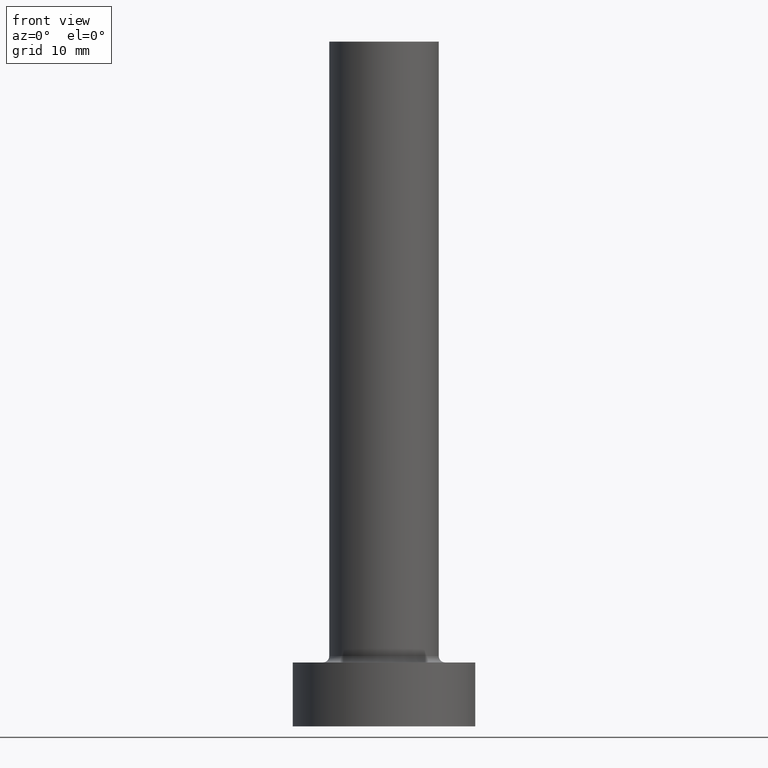
[diagram: clean part render]
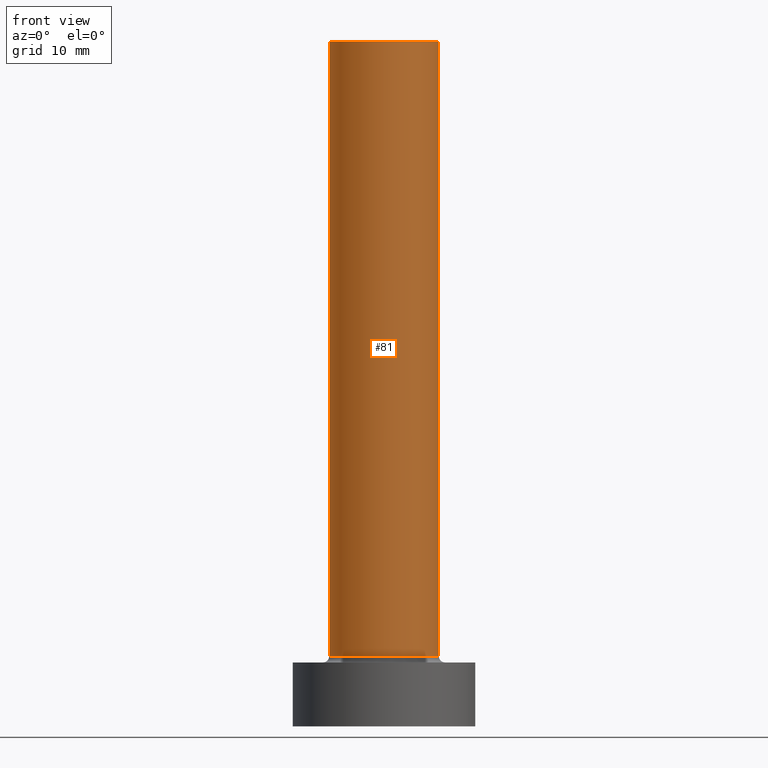
[diagram: same view with one face highlighted and labeled with its STEP entity id]
A machine part, front view. The second image highlights one B-rep face of the part: STEP entity #81.
In plain terms, the highlighted cylindrical surface (partial cylindrical patch) has radius 6 mm, axis along (-0, -0, -1).
Its self-contained STEP definition (entity closure, byte-faithful):
#1 = DIRECTION ( 'NONE',  ( -0.000000000000000000, -0.000000000000000000, -1.000000000000000000 ) ) ;
#21 = VERTEX_POINT ( 'NONE', #172 ) ;
#29 = CIRCLE ( 'NONE', #436, 6.000000000000000888 ) ;
#43 = CARTESIAN_POINT ( 'NONE',  ( -6.000000000000000888, 0.000000000000000000, 75.00000000000001421 ) ) ;
#44 = CARTESIAN_POINT ( 'NONE',  ( 6.000000000000000888, 7.347880794884120722E-16, 75.00000000000001421 ) ) ;
#53 = ORIENTED_EDGE ( 'NONE', *, *, #433, .T. ) ;
#57 = AXIS2_PLACEMENT_3D ( 'NONE', #329, #1, #288 ) ;
#60 = VECTOR ( 'NONE', #441, 1000.000000000000000 ) ;
#69 = VECTOR ( 'NONE', #323, 1000.000000000000000 ) ;
#76 = DIRECTION ( 'NONE',  ( 0.000000000000000000, 0.000000000000000000, 1.000000000000000000 ) ) ;
#81 = ADVANCED_FACE ( 'NONE', ( #192 ), #294, .T. ) ;
#82 = LINE ( 'NONE', #43, #69 ) ;
#94 = ORIENTED_EDGE ( 'NONE', *, *, #341, .T. ) ;
#97 = DIRECTION ( 'NONE',  ( 0.000000000000000000, 0.000000000000000000, 1.000000000000000000 ) ) ;
#99 = VERTEX_POINT ( 'NONE', #324 ) ;
#102 = DIRECTION ( 'NONE',  ( 1.000000000000000000, 0.000000000000000000, 0.000000000000000000 ) ) ;
#132 = EDGE_CURVE ( 'NONE', #21, #305, #29, .T. ) ;
#145 = EDGE_CURVE ( 'NONE', #305, #444, #149, .T. ) ;
#149 = LINE ( 'NONE', #44, #60 ) ;
#172 = CARTESIAN_POINT ( 'NONE',  ( -6.000000000000000888, 0.000000000000000000, 75.00000000000001421 ) ) ;
#186 = AXIS2_PLACEMENT_3D ( 'NONE', #431, #97, #102 ) ;
#192 = FACE_OUTER_BOUND ( 'NONE', #271, .T. ) ;
#210 = CIRCLE ( 'NONE', #186, 6.000000000000000888 ) ;
#220 = DIRECTION ( 'NONE',  ( 1.000000000000000000, 0.000000000000000000, 0.000000000000000000 ) ) ;
#271 = EDGE_LOOP ( 'NONE', ( #425, #344, #53, #94 ) ) ;
#288 = DIRECTION ( 'NONE',  ( -1.000000000000000000, 0.000000000000000000, 0.000000000000000000 ) ) ;
#294 = CYLINDRICAL_SURFACE ( 'NONE', #57, 6.000000000000000888 ) ;
#305 = VERTEX_POINT ( 'NONE', #460 ) ;
#323 = DIRECTION ( 'NONE',  ( -0.000000000000000000, -0.000000000000000000, -1.000000000000000000 ) ) ;
#324 = CARTESIAN_POINT ( 'NONE',  ( -6.000000000000000888, 0.000000000000000000, 7.699999999999998401 ) ) ;
#329 = CARTESIAN_POINT ( 'NONE',  ( 0.000000000000000000, 0.000000000000000000, 75.00000000000001421 ) ) ;
#341 = EDGE_CURVE ( 'NONE', #99, #444, #210, .T. ) ;
#344 = ORIENTED_EDGE ( 'NONE', *, *, #132, .F. ) ;
#361 = CARTESIAN_POINT ( 'NONE',  ( 0.000000000000000000, 0.000000000000000000, 75.00000000000001421 ) ) ;
#425 = ORIENTED_EDGE ( 'NONE', *, *, #145, .F. ) ;
#431 = CARTESIAN_POINT ( 'NONE',  ( 0.000000000000000000, 0.000000000000000000, 7.699999999999998401 ) ) ;
#433 = EDGE_CURVE ( 'NONE', #21, #99, #82, .T. ) ;
#436 = AXIS2_PLACEMENT_3D ( 'NONE', #361, #76, #220 ) ;
#440 = CARTESIAN_POINT ( 'NONE',  ( 6.000000000000000888, 7.347880794884120722E-16, 7.699999999999998401 ) ) ;
#441 = DIRECTION ( 'NONE',  ( -0.000000000000000000, -0.000000000000000000, -1.000000000000000000 ) ) ;
#444 = VERTEX_POINT ( 'NONE', #440 ) ;
#460 = CARTESIAN_POINT ( 'NONE',  ( 6.000000000000000888, 7.347880794884120722E-16, 75.00000000000001421 ) ) ;